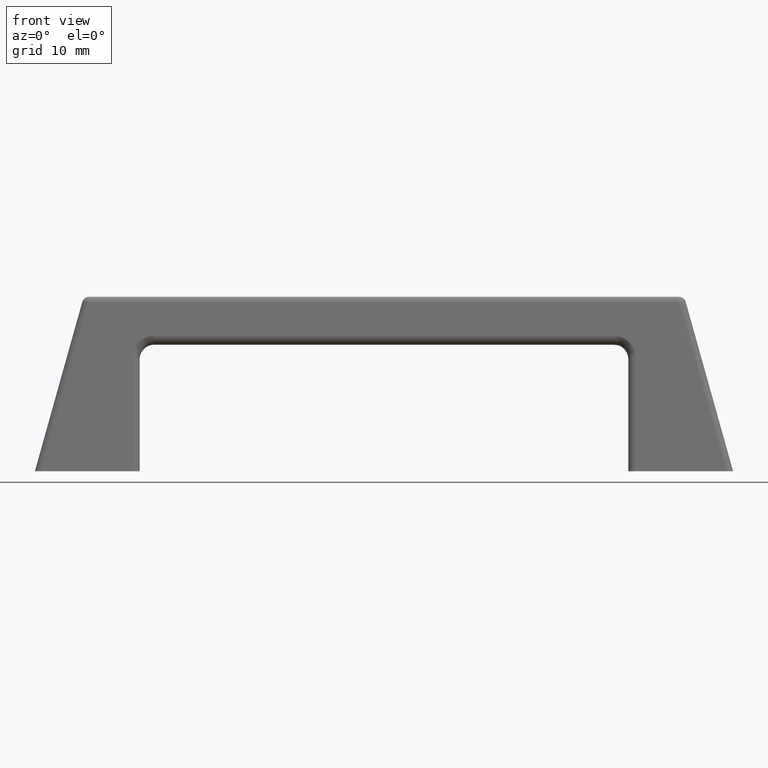
[diagram: clean part render]
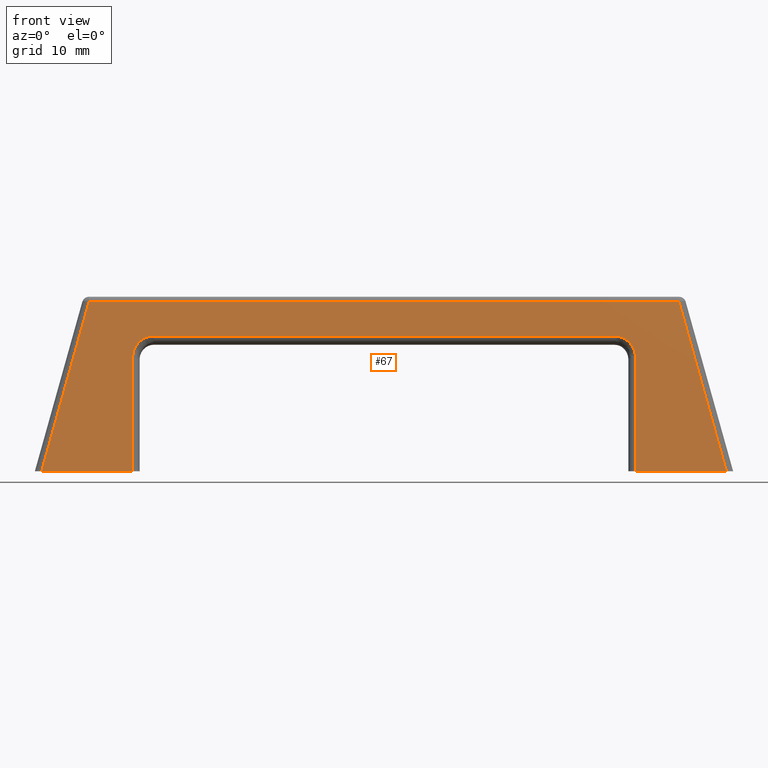
[diagram: same view with one face highlighted and labeled with its STEP entity id]
A machine part, front view. The second image highlights one B-rep face of the part: STEP entity #67.
In plain terms, the highlighted planar face has unit normal (0, -0.963, 0.2696).
Its self-contained STEP definition (entity closure, byte-faithful):
#67=ADVANCED_FACE('',(#351),#350,.T.);
#350=PLANE('',#1523);
#351=FACE_OUTER_BOUND('',#1524,.T.);
#1520=CARTESIAN_POINT('',(-5.88444557589E+01,7.47437922839E+00,2.66965686347E+01));
#1521=DIRECTION('',(2.66382534261E-17,-9.62970200657E-01,2.69607849751E-01));
#1522=DIRECTION('',(0.00000000000E+00,-2.69607849751E-01,-9.62970200657E-01));
#1523=AXIS2_PLACEMENT_3D('',#1520,#1521,#1522);
#1524=EDGE_LOOP('',(#1689,#1690,#1691,#1692,#1693,#1694,#1695,#1696,#1697,#1698));
#1689=ORIENTED_EDGE('',*,*,#1780,.T.);
#1690=ORIENTED_EDGE('',*,*,#1777,.T.);
#1691=ORIENTED_EDGE('',*,*,#1845,.F.);
#1692=ORIENTED_EDGE('',*,*,#1798,.T.);
#1693=ORIENTED_EDGE('',*,*,#1794,.T.);
#1694=ORIENTED_EDGE('',*,*,#1803,.T.);
#1695=ORIENTED_EDGE('',*,*,#1846,.F.);
#1696=ORIENTED_EDGE('',*,*,#1789,.T.);
#1697=ORIENTED_EDGE('',*,*,#1786,.T.);
#1698=ORIENTED_EDGE('',*,*,#1783,.T.);
#1777=EDGE_CURVE('',#1884,#1899,#1906,.T.);
#1780=EDGE_CURVE('',#1912,#1884,#1926,.T.);
#1783=EDGE_CURVE('',#1932,#1912,#1946,.T.);
#1786=EDGE_CURVE('',#1952,#1932,#1966,.T.);
#1789=EDGE_CURVE('',#1973,#1952,#1986,.T.);
#1794=EDGE_CURVE('',#1992,#2014,#2021,.T.);
#1798=EDGE_CURVE('',#2034,#1992,#2047,.T.);
#1803=EDGE_CURVE('',#2014,#2073,#2080,.T.);
#1845=EDGE_CURVE('',#2034,#1899,#2357,.T.);
#1846=EDGE_CURVE('',#1973,#2073,#2363,.T.);
#1884=VERTEX_POINT('',#2486);
#1899=VERTEX_POINT('',#2496);
#1906=LINE('',#2502,#2503);
#1912=VERTEX_POINT('',#2505);
#1926=(BOUNDED_CURVE() B_SPLINE_CURVE(2,(#2516,#2517,#2518),.UNSPECIFIED.,.F.,.F.) B_SPLINE_CURVE_WITH_KNOTS((3,3),(0.00000000000E+00,1.00000000000E+00),.UNSPECIFIED.) CURVE() GEOMETRIC_REPRESENTATION_ITEM() RATIONAL_B_SPLINE_CURVE((1.00000000000E+00,7.07106819420E-01,1.00000000000E+00)) REPRESENTATION_ITEM('') );
#1932=VERTEX_POINT('',#2519);
#1946=LINE('',#2528,#2529);
#1952=VERTEX_POINT('',#2531);
#1966=(BOUNDED_CURVE() B_SPLINE_CURVE(2,(#2540,#2541,#2542,#2543,#2544),.UNSPECIFIED.,.F.,.F.) B_SPLINE_CURVE_WITH_KNOTS((3,2,3),(0.00000000000E+00,5.00000000000E-01,1.00000000000E+00),.UNSPECIFIED.) CURVE() GEOMETRIC_REPRESENTATION_ITEM() RATIONAL_B_SPLINE_CURVE((1.00000000000E+00,9.23879520930E-01,1.00000000000E+00,9.23879520930E-01,1.00000000000E+00)) REPRESENTATION_ITEM('') );
#1973=VERTEX_POINT('',#2546);
#1986=LINE('',#2555,#2556);
#1992=VERTEX_POINT('',#2558);
#2014=VERTEX_POINT('',#2574);
#2021=LINE('',#2579,#2580);
#2034=VERTEX_POINT('',#2586);
#2047=LINE('',#2593,#2594);
#2073=VERTEX_POINT('',#2609);
#2080=LINE('',#2613,#2614);
#2357=LINE('',#2785,#2786);
#2363=LINE('',#2788,#2789);
#2486=CARTESIAN_POINT('',(3.60000000000E+01,4.56435517338E+00,1.63027078819E+01));
#2496=CARTESIAN_POINT('',(3.60000000000E+01,0.00000000000E+00,0.00000000000E+00));
#2502=CARTESIAN_POINT('',(3.60000000000E+01,4.56435517338E+00,1.63027078819E+01));
#2503=VECTOR('',#2504,1.69296078641E+01);
#2504=DIRECTION('',(0.00000000000E+00,-2.69607849751E-01,-9.62970200657E-01));
#2505=CARTESIAN_POINT('',(3.30000000000E+01,5.42672244066E+00,1.93828629338E+01));
#2516=CARTESIAN_POINT('',(3.30000000000E+01,5.42672244066E+00,1.93828629338E+01));
#2517=CARTESIAN_POINT('',(3.60000001612E+01,5.42672230107E+00,1.93828624352E+01));
#2518=CARTESIAN_POINT('',(3.60000000000E+01,4.56435517338E+00,1.63027078819E+01));
#2519=CARTESIAN_POINT('',(-3.30000000000E+01,5.42672244066E+00,1.93828629338E+01));
#2528=CARTESIAN_POINT('',(-3.30000000000E+01,5.42672244066E+00,1.93828629338E+01));
#2529=VECTOR('',#2530,6.60000000000E+01);
#2530=DIRECTION('',(1.00000000000E+00,0.00000000000E+00,0.00000000000E+00));
#2531=CARTESIAN_POINT('',(-3.60000000000E+01,4.56435517338E+00,1.63027078819E+01));
#2540=CARTESIAN_POINT('',(-3.60000000000E+01,4.56435517338E+00,1.63027078819E+01));
#2541=CARTESIAN_POINT('',(-3.60000000000E+01,4.92155942181E+00,1.75785499878E+01));
#2542=CARTESIAN_POINT('',(-3.51213202152E+01,5.17414095286E+00,1.84807065380E+01));
#2543=CARTESIAN_POINT('',(-3.42426404303E+01,5.42672248390E+00,1.93828630882E+01));
#2544=CARTESIAN_POINT('',(-3.30000000000E+01,5.42672244066E+00,1.93828629338E+01));
#2546=CARTESIAN_POINT('',(-3.60000000000E+01,0.00000000000E+00,0.00000000000E+00));
#2555=CARTESIAN_POINT('',(-3.60000000000E+01,0.00000000000E+00,0.00000000000E+00));
#2556=VECTOR('',#2557,1.69296078641E+01);
#2557=DIRECTION('',(0.00000000000E+00,2.69607849751E-01,9.62970200657E-01));
#2558=CARTESIAN_POINT('',(4.22413396071E+01,6.79489020763E+00,2.42696078498E+01));
#2574=CARTESIAN_POINT('',(-4.22416395996E+01,6.79489020763E+00,2.42696078498E+01));
#2579=CARTESIAN_POINT('',(4.22413396071E+01,6.79489020763E+00,2.42696078498E+01));
#2580=VECTOR('',#2581,8.44829792067E+01);
#2581=DIRECTION('',(-1.00000000000E+00,0.00000000000E+00,0.00000000000E+00));
#2586=CARTESIAN_POINT('',(4.90372297986E+01,0.00000000000E+00,0.00000000000E+00));
#2593=CARTESIAN_POINT('',(4.90372297986E+01,0.00000000000E+00,0.00000000000E+00));
#2594=VECTOR('',#2595,2.61030366358E+01);
#2595=DIRECTION('',(-2.60348643964E-01,2.60310334864E-01,9.29761858300E-01));
#2609=CARTESIAN_POINT('',(-4.90370297992E+01,0.00000000000E+00,0.00000000000E+00));
#2613=CARTESIAN_POINT('',(-4.22416395996E+01,6.79489020763E+00,2.42696078498E+01));
#2614=VECTOR('',#2615,2.61029064680E+01);
#2615=DIRECTION('',(-2.60330787603E-01,-2.60311632957E-01,-9.29766494757E-01));
#2785=CARTESIAN_POINT('',(4.90372297986E+01,0.00000000000E+00,0.00000000000E+00));
#2786=VECTOR('',#2787,1.30372297986E+01);
#2787=DIRECTION('',(-1.00000000000E+00,0.00000000000E+00,0.00000000000E+00));
#2788=CARTESIAN_POINT('',(-3.60000000000E+01,0.00000000000E+00,0.00000000000E+00));
#2789=VECTOR('',#2790,1.30370297992E+01);
#2790=DIRECTION('',(-1.00000000000E+00,0.00000000000E+00,0.00000000000E+00));